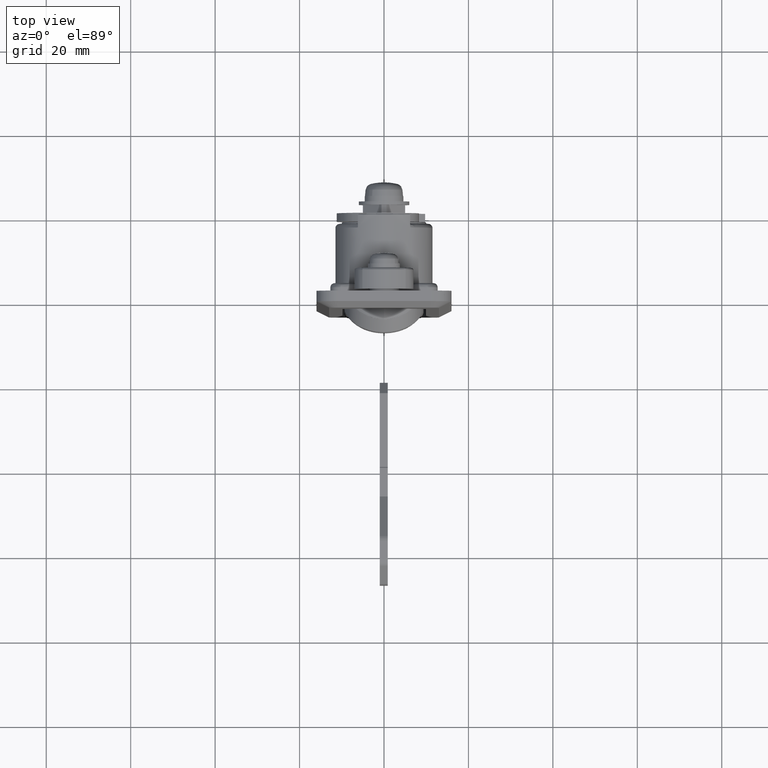
[diagram: clean part render]
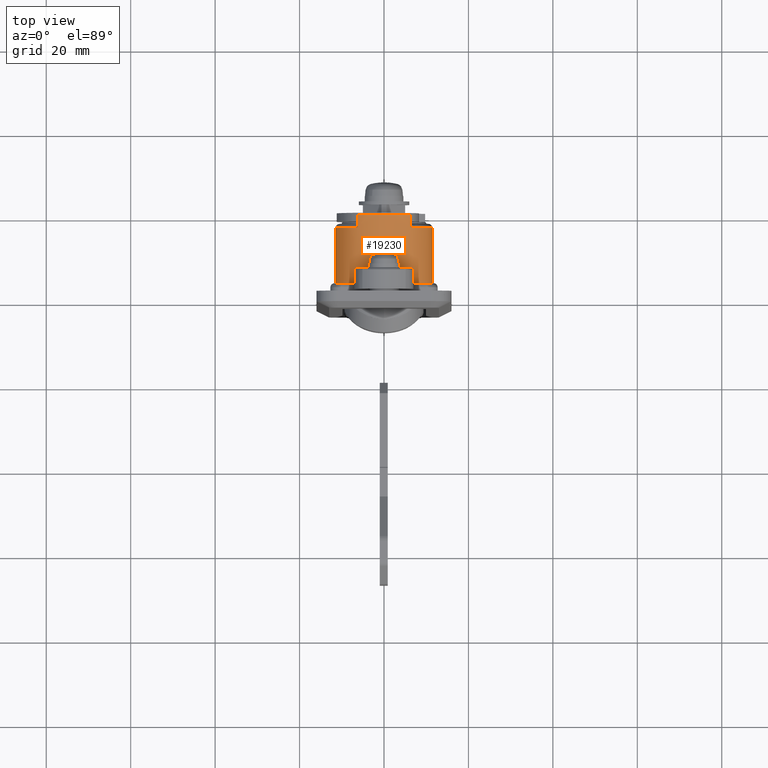
[diagram: same view with one face highlighted and labeled with its STEP entity id]
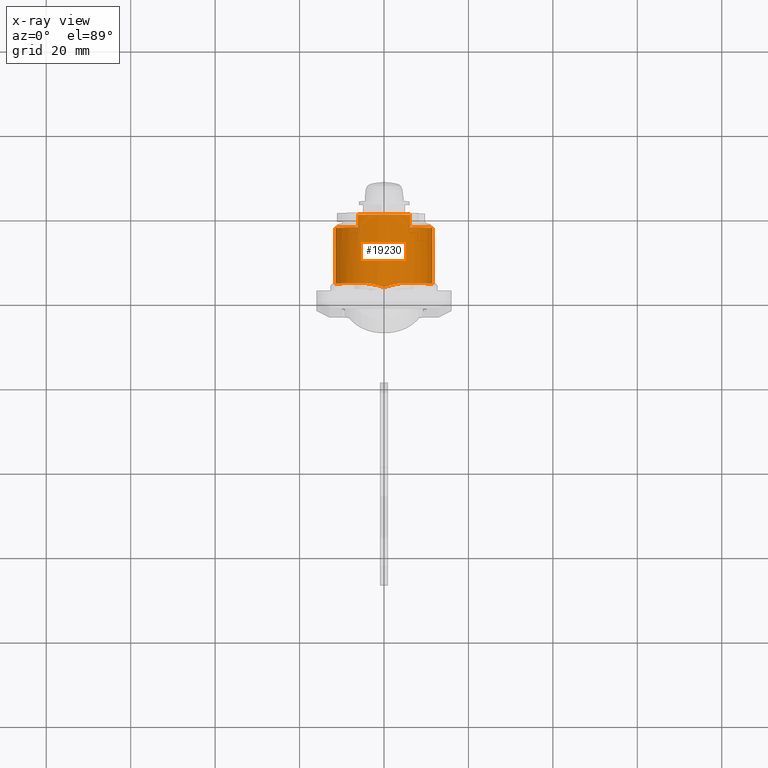
[diagram: x-ray of the same camera — body ghosted, the highlighted face saturated]
A machine part, top view. The second image highlights one B-rep face of the part: STEP entity #19230.
The next image is the same camera in x-ray: the body ghosted, the highlighted face saturated — about 0% of this face is hidden behind the body in this view.
In plain terms, the highlighted face is a freeform B-spline surface patch.
Its self-contained STEP definition (entity closure, byte-faithful):
#17139=CARTESIAN_POINT('',(3.000000000000225,4.690415759823431,11.500000000000000));
#17140=VERTEX_POINT('',#17139);
#17141=CARTESIAN_POINT('',(2.000000000000170,0.0,12.500000000000000));
#17142=VERTEX_POINT('',#17141);
#17143=CARTESIAN_POINT('',(3.000000000000225,4.690415759823431,11.500000000000000));
#17144=CARTESIAN_POINT('',(3.000000000000170,4.500392388326992,11.584884630133500));
#17145=CARTESIAN_POINT('',(2.989376017382997,4.309708842109271,11.663889404401710));
#17146=CARTESIAN_POINT('',(2.953453825861729,3.926430909640534,11.810886542966090));
#17147=CARTESIAN_POINT('',(2.928081584252275,3.733843825670077,11.878872378748300));
#17148=CARTESIAN_POINT('',(2.866392894893047,3.346413239475822,12.004225205722040));
#17149=CARTESIAN_POINT('',(2.830048187157289,3.151572512056962,12.061589668240931));
#17150=CARTESIAN_POINT('',(2.769239603087473,2.857420431964747,12.139813386983301));
#17151=CARTESIAN_POINT('',(2.747887405924067,2.758941881975342,12.164607425251720));
#17152=CARTESIAN_POINT('',(2.703542885086189,2.562246426042567,12.211383167135780));
#17153=CARTESIAN_POINT('',(2.680536602458176,2.463952355893659,12.233388737136391));
#17154=CARTESIAN_POINT('',(2.561962623284399,1.972601762261265,12.336674203456230));
#17155=CARTESIAN_POINT('',(2.455967405314800,1.579864825792285,12.397842860974450));
#17156=CARTESIAN_POINT('',(2.289201280699771,0.989072175396875,12.459098346714120));
#17157=CARTESIAN_POINT('',(2.232277269183907,0.791867987098466,12.474411080987810));
#17158=CARTESIAN_POINT('',(2.145781568037661,0.495413966688115,12.489750047008510));
#17159=CARTESIAN_POINT('',(2.102255003396508,0.347025155193369,12.495510255699200));
#17160=CARTESIAN_POINT('',(2.058470674062800,0.198349061517191,12.498396303014870));
#17161=CARTESIAN_POINT('',(2.029241510177720,0.099162776234110,12.499679414453270));
#17162=CARTESIAN_POINT('',(2.014552194140463,0.049349098586814,12.500000000000000));
#17163=CARTESIAN_POINT('',(2.000000000000170,-1.577909E-015,12.500000000000000));
#17164=B_SPLINE_CURVE_WITH_KNOTS('',3,(#17143,#17144,#17145,#17146,#17147,#17148,#17149,#17150,#17151,#17152,#17153,#17154,#17155,#17156,#17157,#17158,#17159,#17160,#17161,#17162,#17163),.UNSPECIFIED.,.F.,.U.,(4,2,2,2,2,2,2,2,1,2,4),(0.0,0.125000000000000,0.250000000000001,0.375000000000001,0.437500000000001,0.500000000000001,0.750000000000000,0.875000000000000,0.937500000000000,0.968750000000000,1.0),.UNSPECIFIED.);
#17165=EDGE_CURVE('',#17140,#17142,#17164,.T.);
#17195=CARTESIAN_POINT('',(3.000000000000225,-4.690415759823431,11.500000000000000));
#17196=VERTEX_POINT('',#17195);
#17197=CARTESIAN_POINT('',(2.000000000000170,1.577909E-015,12.500000000000000));
#17198=CARTESIAN_POINT('',(2.014552194140463,-0.049349098586814,12.500000000000000));
#17199=CARTESIAN_POINT('',(2.029241510177720,-0.099162776234110,12.499679414453270));
#17200=CARTESIAN_POINT('',(2.058470674062800,-0.198349061517191,12.498396303014870));
#17201=CARTESIAN_POINT('',(2.102255003396508,-0.347025155193369,12.495510255699200));
#17202=CARTESIAN_POINT('',(2.145781568037661,-0.495413966688115,12.489750047008510));
#17203=CARTESIAN_POINT('',(2.232277269183907,-0.791867987098466,12.474411080987810));
#17204=CARTESIAN_POINT('',(2.289201280699771,-0.989072175396875,12.459098346714120));
#17205=CARTESIAN_POINT('',(2.455967405314800,-1.579864825792285,12.397842860974450));
#17206=CARTESIAN_POINT('',(2.561962623284399,-1.972601762261265,12.336674203456230));
#17207=CARTESIAN_POINT('',(2.680536602458176,-2.463952355893659,12.233388737136391));
#17208=CARTESIAN_POINT('',(2.703542885086189,-2.562246426042567,12.211383167135780));
#17209=CARTESIAN_POINT('',(2.747887405924067,-2.758941881975342,12.164607425251720));
#17210=CARTESIAN_POINT('',(2.769239603087473,-2.857420431964747,12.139813386983301));
#17211=CARTESIAN_POINT('',(2.830048187157289,-3.151572512056962,12.061589668240931));
#17212=CARTESIAN_POINT('',(2.866392894893047,-3.346413239475822,12.004225205722040));
#17213=CARTESIAN_POINT('',(2.928081584252275,-3.733843825670077,11.878872378748300));
#17214=CARTESIAN_POINT('',(2.953453825861729,-3.926430909640534,11.810886542966090));
#17215=CARTESIAN_POINT('',(2.989376017382997,-4.309708842109271,11.663889404401710));
#17216=CARTESIAN_POINT('',(3.000000000000170,-4.500392388326992,11.584884630133500));
#17217=CARTESIAN_POINT('',(3.000000000000225,-4.690415759823431,11.500000000000000));
#17218=B_SPLINE_CURVE_WITH_KNOTS('',3,(#17197,#17198,#17199,#17200,#17201,#17202,#17203,#17204,#17205,#17206,#17207,#17208,#17209,#17210,#17211,#17212,#17213,#17214,#17215,#17216,#17217),.UNSPECIFIED.,.F.,.U.,(4,2,1,2,2,2,2,2,2,2,4),(0.0,0.031250000000000,0.062500000000000,0.125000000000000,0.250000000000000,0.499999999999999,0.562499999999999,0.624999999999999,0.750000000000000,0.875000000000000,1.0),.UNSPECIFIED.);
#17219=EDGE_CURVE('',#17142,#17196,#17218,.T.);
#18921=CARTESIAN_POINT('',(16.199999999999999,-11.500000000000000,1.0));
#18922=VERTEX_POINT('',#18921);
#18928=CARTESIAN_POINT('',(3.000000000000225,-11.500000000000000,1.0));
#18929=VERTEX_POINT('',#18928);
#18930=CARTESIAN_POINT('',(16.199999999999999,-11.500000000000000,1.0));
#18931=CARTESIAN_POINT('',(3.000000000000225,-11.500000000000000,1.0));
#18932=QUASI_UNIFORM_CURVE('',1,(#18930,#18931),.UNSPECIFIED.,.F.,.U.);
#18933=EDGE_CURVE('',#18922,#18929,#18932,.T.);
#19025=CARTESIAN_POINT('',(3.000000000000225,11.500000000000000,1.0));
#19026=VERTEX_POINT('',#19025);
#19032=CARTESIAN_POINT('',(16.199999999999999,11.500000000000000,1.0));
#19033=VERTEX_POINT('',#19032);
#19034=CARTESIAN_POINT('',(16.199999999999999,11.500000000000000,1.0));
#19035=CARTESIAN_POINT('',(3.000000000000225,11.500000000000000,1.0));
#19036=QUASI_UNIFORM_CURVE('',1,(#19034,#19035),.UNSPECIFIED.,.F.,.U.);
#19037=EDGE_CURVE('',#19033,#19026,#19036,.T.);
#19123=CARTESIAN_POINT('',(19.629999999999999,11.499562115237969,0.899644841768710));
#19124=CARTESIAN_POINT('',(1.559250000000174,11.499562115237969,0.899644841768710));
#19125=CARTESIAN_POINT('',(19.629999999999999,11.603482923731715,12.807790007415218));
#19126=CARTESIAN_POINT('',(1.559250000000175,11.603482923731715,12.807790007415218));
#19127=CARTESIAN_POINT('',(19.629999999999999,-0.301034905540545,12.496059237218899));
#19128=CARTESIAN_POINT('',(1.559250000000174,-0.301034905540545,12.496059237218899));
#19129=CARTESIAN_POINT('',(19.629999999999999,-12.205552734812807,12.184328467022587));
#19130=CARTESIAN_POINT('',(1.559250000000175,-12.205552734812807,12.184328467022587));
#19131=CARTESIAN_POINT('',(19.629999999999999,-11.478550181851469,0.297941795349147));
#19132=CARTESIAN_POINT('',(1.559250000000174,-11.478550181851469,0.297941795349147));
#19140=(BOUNDED_SURFACE()B_SPLINE_SURFACE(1,2,((#19123,#19125,#19127,#19129,#19131),(#19124,#19126,#19128,#19130,#19132)),.UNSPECIFIED.,.F.,.F.,.U.)B_SPLINE_SURFACE_WITH_KNOTS((2,2),(3,2,3),(0.0,18.070749999999830),(0.0,19.525841545641800,39.051683091283607),.UNSPECIFIED.)GEOMETRIC_REPRESENTATION_ITEM()RATIONAL_B_SPLINE_SURFACE(((1.0,0.694658370458997,1.0,0.694658370458997,1.0),(1.0,0.694658370458997,1.0,0.694658370458997,1.0)))REPRESENTATION_ITEM('')SURFACE());
#19141=CARTESIAN_POINT('',(3.000000000000225,11.500000000000000,1.0));
#19142=CARTESIAN_POINT('',(3.000000000000225,11.500000000000002,8.458116072574342));
#19143=CARTESIAN_POINT('',(3.000000000000225,4.690415759823428,11.500000000000000));
#19151=(BOUNDED_CURVE()B_SPLINE_CURVE(2,(#19141,#19142,#19143),.UNSPECIFIED.,.F.,.U.)CURVE()GEOMETRIC_REPRESENTATION_ITEM()QUASI_UNIFORM_CURVE()RATIONAL_B_SPLINE_CURVE((1.0,0.839006030963022,1.0))REPRESENTATION_ITEM(''));
#19152=EDGE_CURVE('',#19026,#17140,#19151,.T.);
#19153=ORIENTED_EDGE('',*,*,#19152,.T.);
#19154=ORIENTED_EDGE('',*,*,#17165,.T.);
#19155=ORIENTED_EDGE('',*,*,#17219,.T.);
#19156=CARTESIAN_POINT('',(3.000000000000225,-4.690415759823425,11.500000000000000));
#19157=CARTESIAN_POINT('',(3.000000000000225,-11.500000000000000,8.458116072574343));
#19158=CARTESIAN_POINT('',(3.000000000000225,-11.500000000000000,1.0));
#19166=(BOUNDED_CURVE()B_SPLINE_CURVE(2,(#19156,#19157,#19158),.UNSPECIFIED.,.F.,.U.)CURVE()GEOMETRIC_REPRESENTATION_ITEM()QUASI_UNIFORM_CURVE()RATIONAL_B_SPLINE_CURVE((1.0,0.839006030963022,1.0))REPRESENTATION_ITEM(''));
#19167=EDGE_CURVE('',#17196,#18929,#19166,.T.);
#19168=ORIENTED_EDGE('',*,*,#19167,.T.);
#19169=ORIENTED_EDGE('',*,*,#18933,.F.);
#19170=CARTESIAN_POINT('',(16.199999999999999,-6.177574828179941,10.699874702398860));
#19171=VERTEX_POINT('',#19170);
#19172=CARTESIAN_POINT('',(16.199999999999999,-11.500000000000000,1.0));
#19173=CARTESIAN_POINT('',(16.199999999999996,-11.499999999999998,7.310173208814065));
#19174=CARTESIAN_POINT('',(16.199999999999999,-6.177574828179946,10.699874702398869));
#19182=(BOUNDED_CURVE()B_SPLINE_CURVE(2,(#19172,#19173,#19174),.UNSPECIFIED.,.F.,.U.)CURVE()GEOMETRIC_REPRESENTATION_ITEM()QUASI_UNIFORM_CURVE()RATIONAL_B_SPLINE_CURVE((1.0,0.876692768260847,1.0))REPRESENTATION_ITEM(''));
#19183=EDGE_CURVE('',#18922,#19171,#19182,.T.);
#19184=ORIENTED_EDGE('',*,*,#19183,.T.);
#19185=CARTESIAN_POINT('',(19.199999999999999,-6.177574828179941,10.699874702398860));
#19186=VERTEX_POINT('',#19185);
#19187=CARTESIAN_POINT('',(19.199999999999999,-6.177574828179941,10.699874702398860));
#19188=CARTESIAN_POINT('',(16.199999999999999,-6.177574828179941,10.699874702398860));
#19189=QUASI_UNIFORM_CURVE('',1,(#19187,#19188),.UNSPECIFIED.,.F.,.U.);
#19190=EDGE_CURVE('',#19186,#19171,#19189,.T.);
#19191=ORIENTED_EDGE('',*,*,#19190,.F.);
#19192=CARTESIAN_POINT('',(19.199999999999999,6.177575559335470,10.699874236746620));
#19193=VERTEX_POINT('',#19192);
#19194=CARTESIAN_POINT('',(19.199999999999999,-6.177574828179946,10.699874702398869));
#19195=CARTESIAN_POINT('',(19.199999999999996,0.000000513858120,14.634197062534254));
#19196=CARTESIAN_POINT('',(19.199999999999999,6.177575559335472,10.699874236746631));
#19204=(BOUNDED_CURVE()B_SPLINE_CURVE(2,(#19194,#19195,#19196),.UNSPECIFIED.,.F.,.U.)CURVE()GEOMETRIC_REPRESENTATION_ITEM()QUASI_UNIFORM_CURVE()RATIONAL_B_SPLINE_CURVE((1.0,0.843467345180240,1.0))REPRESENTATION_ITEM(''));
#19205=EDGE_CURVE('',#19186,#19193,#19204,.T.);
#19206=ORIENTED_EDGE('',*,*,#19205,.T.);
#19207=CARTESIAN_POINT('',(16.199999999999999,6.177575559335470,10.699874236746620));
#19208=VERTEX_POINT('',#19207);
#19209=CARTESIAN_POINT('',(19.199999999999999,6.177575559335470,10.699874236746620));
#19210=CARTESIAN_POINT('',(16.199999999999999,6.177575559335470,10.699874236746620));
#19211=QUASI_UNIFORM_CURVE('',1,(#19209,#19210),.UNSPECIFIED.,.F.,.U.);
#19212=EDGE_CURVE('',#19193,#19208,#19211,.T.);
#19213=ORIENTED_EDGE('',*,*,#19212,.T.);
#19214=CARTESIAN_POINT('',(16.199999999999999,6.177575559335472,10.699874236746631));
#19215=CARTESIAN_POINT('',(16.199999999999996,11.500000000000002,7.310172644895177));
#19216=CARTESIAN_POINT('',(16.199999999999999,11.500000000000000,1.0));
#19224=(BOUNDED_CURVE()B_SPLINE_CURVE(2,(#19214,#19215,#19216),.UNSPECIFIED.,.F.,.U.)CURVE()GEOMETRIC_REPRESENTATION_ITEM()QUASI_UNIFORM_CURVE()RATIONAL_B_SPLINE_CURVE((1.0,0.876692786391127,1.0))REPRESENTATION_ITEM(''));
#19225=EDGE_CURVE('',#19208,#19033,#19224,.T.);
#19226=ORIENTED_EDGE('',*,*,#19225,.T.);
#19227=ORIENTED_EDGE('',*,*,#19037,.T.);
#19228=EDGE_LOOP('',(#19153,#19154,#19155,#19168,#19169,#19184,#19191,#19206,#19213,#19226,#19227));
#19229=FACE_OUTER_BOUND('',#19228,.T.);
#19230=ADVANCED_FACE('',(#19229),#19140,.T.);